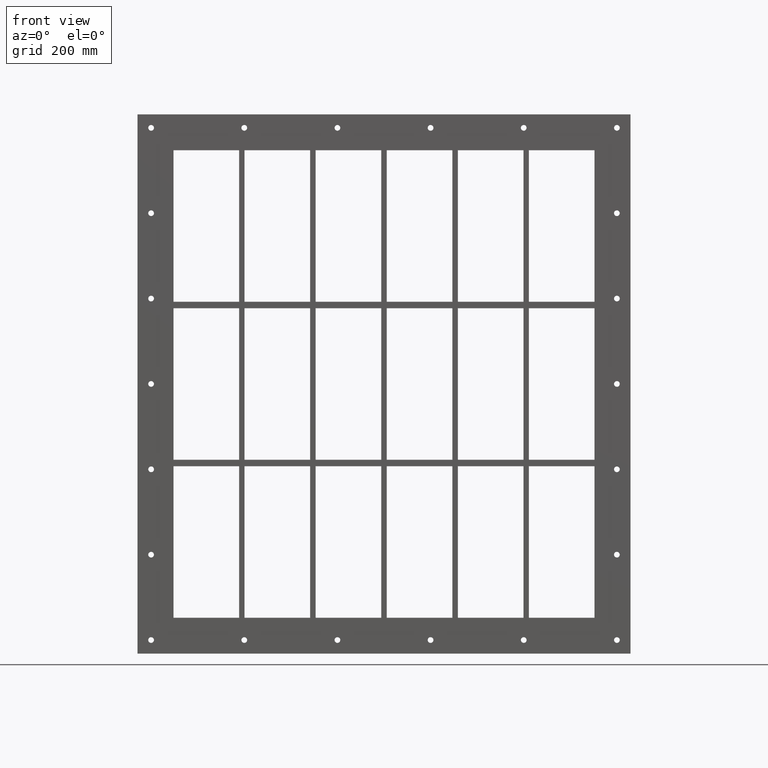
[diagram: clean part render]
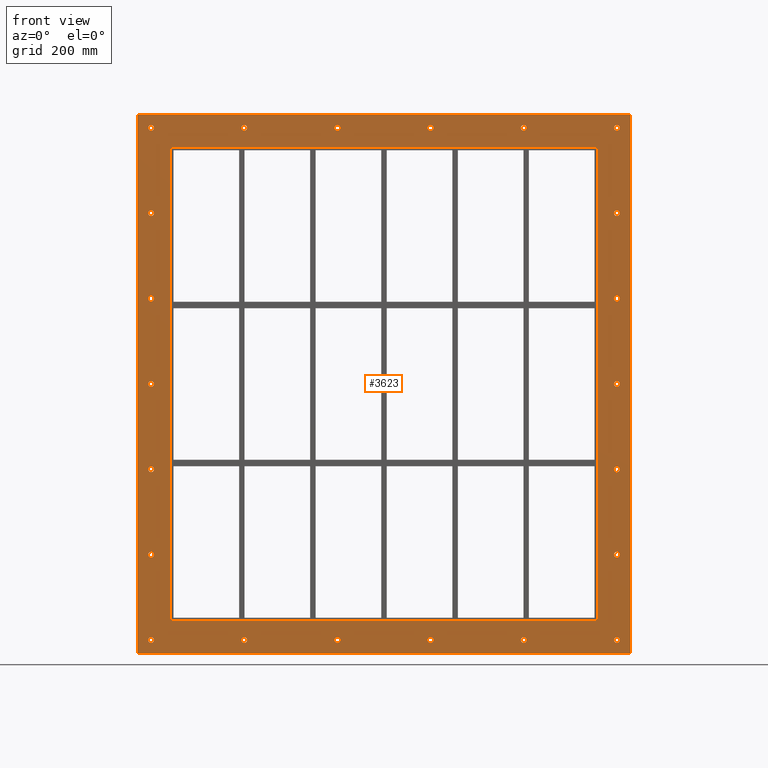
[diagram: same view with one face highlighted and labeled with its STEP entity id]
A machine part, front view. The second image highlights one B-rep face of the part: STEP entity #3623.
In plain terms, the highlighted planar face has unit normal (0, 1, 0).
Its self-contained STEP definition (entity closure, byte-faithful):
#84=CARTESIAN_POINT('',(-422.25000000000011,0.0,-470.00000000000011));
#85=VERTEX_POINT('',#84);
#86=CARTESIAN_POINT('',(-427.50000000000006,0.0,-470.00000000000011));
#87=DIRECTION('',(0.0,1.0,0.0));
#88=DIRECTION('',(1.0,0.0,0.0));
#89=AXIS2_PLACEMENT_3D('',#86,#87,#88);
#90=CIRCLE('',#89,5.25);
#91=EDGE_CURVE('',#85,#85,#90,.T.);
#112=CARTESIAN_POINT('',(432.74999999999989,0.0,-313.30000000000013));
#113=VERTEX_POINT('',#112);
#114=CARTESIAN_POINT('',(427.49999999999994,0.0,-313.30000000000013));
#115=DIRECTION('',(0.0,1.0,0.0));
#116=DIRECTION('',(1.0,0.0,0.0));
#117=AXIS2_PLACEMENT_3D('',#114,#115,#116);
#118=CIRCLE('',#117,5.25);
#119=EDGE_CURVE('',#113,#113,#118,.T.);
#140=CARTESIAN_POINT('',(-422.25000000000011,0.0,-313.30000000000013));
#141=VERTEX_POINT('',#140);
#142=CARTESIAN_POINT('',(-427.50000000000006,0.0,-313.30000000000013));
#143=DIRECTION('',(0.0,1.0,0.0));
#144=DIRECTION('',(1.0,0.0,0.0));
#145=AXIS2_PLACEMENT_3D('',#142,#143,#144);
#146=CIRCLE('',#145,5.25);
#147=EDGE_CURVE('',#141,#141,#146,.T.);
#168=CARTESIAN_POINT('',(432.74999999999989,0.0,-156.60000000000016));
#169=VERTEX_POINT('',#168);
#170=CARTESIAN_POINT('',(427.49999999999994,0.0,-156.60000000000016));
#171=DIRECTION('',(0.0,1.0,0.0));
#172=DIRECTION('',(1.0,0.0,0.0));
#173=AXIS2_PLACEMENT_3D('',#170,#171,#172);
#174=CIRCLE('',#173,5.25);
#175=EDGE_CURVE('',#169,#169,#174,.T.);
#196=CARTESIAN_POINT('',(-422.25000000000011,0.0,-156.60000000000016));
#197=VERTEX_POINT('',#196);
#198=CARTESIAN_POINT('',(-427.50000000000006,0.0,-156.60000000000016));
#199=DIRECTION('',(0.0,1.0,0.0));
#200=DIRECTION('',(1.0,0.0,0.0));
#201=AXIS2_PLACEMENT_3D('',#198,#199,#200);
#202=CIRCLE('',#201,5.25);
#203=EDGE_CURVE('',#197,#197,#202,.T.);
#224=CARTESIAN_POINT('',(432.74999999999989,0.0,0.099999999999856));
#225=VERTEX_POINT('',#224);
#226=CARTESIAN_POINT('',(427.49999999999994,0.0,0.099999999999856));
#227=DIRECTION('',(0.0,1.0,0.0));
#228=DIRECTION('',(1.0,0.0,0.0));
#229=AXIS2_PLACEMENT_3D('',#226,#227,#228);
#230=CIRCLE('',#229,5.25);
#231=EDGE_CURVE('',#225,#225,#230,.T.);
#252=CARTESIAN_POINT('',(-422.25000000000011,0.0,0.099999999999856));
#253=VERTEX_POINT('',#252);
#254=CARTESIAN_POINT('',(-427.50000000000006,0.0,0.099999999999856));
#255=DIRECTION('',(0.0,1.0,0.0));
#256=DIRECTION('',(1.0,0.0,0.0));
#257=AXIS2_PLACEMENT_3D('',#254,#255,#256);
#258=CIRCLE('',#257,5.25);
#259=EDGE_CURVE('',#253,#253,#258,.T.);
#280=CARTESIAN_POINT('',(432.74999999999989,0.0,156.79999999999981));
#281=VERTEX_POINT('',#280);
#282=CARTESIAN_POINT('',(427.49999999999994,0.0,156.79999999999981));
#283=DIRECTION('',(0.0,1.0,0.0));
#284=DIRECTION('',(1.0,0.0,0.0));
#285=AXIS2_PLACEMENT_3D('',#282,#283,#284);
#286=CIRCLE('',#285,5.25);
#287=EDGE_CURVE('',#281,#281,#286,.T.);
#308=CARTESIAN_POINT('',(-422.25000000000011,0.0,156.79999999999981));
#309=VERTEX_POINT('',#308);
#310=CARTESIAN_POINT('',(-427.50000000000006,0.0,156.79999999999981));
#311=DIRECTION('',(0.0,1.0,0.0));
#312=DIRECTION('',(1.0,0.0,0.0));
#313=AXIS2_PLACEMENT_3D('',#310,#311,#312);
#314=CIRCLE('',#313,5.25);
#315=EDGE_CURVE('',#309,#309,#314,.T.);
#336=CARTESIAN_POINT('',(432.74999999999989,0.0,313.49999999999977));
#337=VERTEX_POINT('',#336);
#338=CARTESIAN_POINT('',(427.49999999999994,0.0,313.49999999999977));
#339=DIRECTION('',(0.0,1.0,0.0));
#340=DIRECTION('',(1.0,0.0,0.0));
#341=AXIS2_PLACEMENT_3D('',#338,#339,#340);
#342=CIRCLE('',#341,5.25);
#343=EDGE_CURVE('',#337,#337,#342,.T.);
#364=CARTESIAN_POINT('',(-422.25000000000011,0.0,313.49999999999977));
#365=VERTEX_POINT('',#364);
#366=CARTESIAN_POINT('',(-427.50000000000006,0.0,313.49999999999977));
#367=DIRECTION('',(0.0,1.0,0.0));
#368=DIRECTION('',(1.0,0.0,0.0));
#369=AXIS2_PLACEMENT_3D('',#366,#367,#368);
#370=CIRCLE('',#369,5.25);
#371=EDGE_CURVE('',#365,#365,#370,.T.);
#392=CARTESIAN_POINT('',(-251.25000000000014,0.0,470.19999999999982));
#393=VERTEX_POINT('',#392);
#394=CARTESIAN_POINT('',(-256.50000000000011,0.0,470.19999999999982));
#395=DIRECTION('',(0.0,1.0,0.0));
#396=DIRECTION('',(1.0,0.0,0.0));
#397=AXIS2_PLACEMENT_3D('',#394,#395,#396);
#398=CIRCLE('',#397,5.25);
#399=EDGE_CURVE('',#393,#393,#398,.T.);
#420=CARTESIAN_POINT('',(-251.25000000000023,0.0,-470.00000000000011));
#421=VERTEX_POINT('',#420);
#422=CARTESIAN_POINT('',(-256.50000000000023,0.0,-470.00000000000011));
#423=DIRECTION('',(0.0,1.0,0.0));
#424=DIRECTION('',(1.0,0.0,0.0));
#425=AXIS2_PLACEMENT_3D('',#422,#423,#424);
#426=CIRCLE('',#425,5.25);
#427=EDGE_CURVE('',#421,#421,#426,.T.);
#448=CARTESIAN_POINT('',(-80.250000000000128,0.0,470.19999999999982));
#449=VERTEX_POINT('',#448);
#450=CARTESIAN_POINT('',(-85.500000000000114,0.0,470.19999999999982));
#451=DIRECTION('',(0.0,1.0,0.0));
#452=DIRECTION('',(1.0,0.0,0.0));
#453=AXIS2_PLACEMENT_3D('',#450,#451,#452);
#454=CIRCLE('',#453,5.25);
#455=EDGE_CURVE('',#449,#449,#454,.T.);
#476=CARTESIAN_POINT('',(-80.250000000000199,0.0,-470.00000000000011));
#477=VERTEX_POINT('',#476);
#478=CARTESIAN_POINT('',(-85.500000000000185,0.0,-470.00000000000011));
#479=DIRECTION('',(0.0,1.0,0.0));
#480=DIRECTION('',(1.0,0.0,0.0));
#481=AXIS2_PLACEMENT_3D('',#478,#479,#480);
#482=CIRCLE('',#481,5.25);
#483=EDGE_CURVE('',#477,#477,#482,.T.);
#504=CARTESIAN_POINT('',(90.749999999999886,0.0,470.19999999999982));
#505=VERTEX_POINT('',#504);
#506=CARTESIAN_POINT('',(85.499999999999901,0.0,470.19999999999982));
#507=DIRECTION('',(0.0,1.0,0.0));
#508=DIRECTION('',(1.0,0.0,0.0));
#509=AXIS2_PLACEMENT_3D('',#506,#507,#508);
#510=CIRCLE('',#509,5.25);
#511=EDGE_CURVE('',#505,#505,#510,.T.);
#532=CARTESIAN_POINT('',(90.749999999999815,0.0,-470.00000000000011));
#533=VERTEX_POINT('',#532);
#534=CARTESIAN_POINT('',(85.499999999999829,0.0,-470.00000000000011));
#535=DIRECTION('',(0.0,1.0,0.0));
#536=DIRECTION('',(1.0,0.0,0.0));
#537=AXIS2_PLACEMENT_3D('',#534,#535,#536);
#538=CIRCLE('',#537,5.25);
#539=EDGE_CURVE('',#533,#533,#538,.T.);
#560=CARTESIAN_POINT('',(261.74999999999989,0.0,470.19999999999982));
#561=VERTEX_POINT('',#560);
#562=CARTESIAN_POINT('',(256.49999999999989,0.0,470.19999999999982));
#563=DIRECTION('',(0.0,1.0,0.0));
#564=DIRECTION('',(1.0,0.0,0.0));
#565=AXIS2_PLACEMENT_3D('',#562,#563,#564);
#566=CIRCLE('',#565,5.25);
#567=EDGE_CURVE('',#561,#561,#566,.T.);
#588=CARTESIAN_POINT('',(261.74999999999983,0.0,-470.00000000000011));
#589=VERTEX_POINT('',#588);
#590=CARTESIAN_POINT('',(256.49999999999983,0.0,-470.00000000000011));
#591=DIRECTION('',(0.0,1.0,0.0));
#592=DIRECTION('',(1.0,0.0,0.0));
#593=AXIS2_PLACEMENT_3D('',#590,#591,#592);
#594=CIRCLE('',#593,5.25);
#595=EDGE_CURVE('',#589,#589,#594,.T.);
#616=CARTESIAN_POINT('',(432.74999999999983,0.0,-470.00000000000011));
#617=VERTEX_POINT('',#616);
#618=CARTESIAN_POINT('',(427.49999999999989,0.0,-470.00000000000011));
#619=DIRECTION('',(0.0,1.0,0.0));
#620=DIRECTION('',(1.0,0.0,0.0));
#621=AXIS2_PLACEMENT_3D('',#618,#619,#620);
#622=CIRCLE('',#621,5.25);
#623=EDGE_CURVE('',#617,#617,#622,.T.);
#644=CARTESIAN_POINT('',(-422.25000000000011,0.0,470.19999999999982));
#645=VERTEX_POINT('',#644);
#646=CARTESIAN_POINT('',(-427.50000000000006,0.0,470.19999999999982));
#647=DIRECTION('',(0.0,1.0,0.0));
#648=DIRECTION('',(1.0,0.0,0.0));
#649=AXIS2_PLACEMENT_3D('',#646,#647,#648);
#650=CIRCLE('',#649,5.25);
#651=EDGE_CURVE('',#645,#645,#650,.T.);
#672=CARTESIAN_POINT('',(432.74999999999989,0.0,470.19999999999982));
#673=VERTEX_POINT('',#672);
#674=CARTESIAN_POINT('',(427.49999999999994,0.0,470.19999999999982));
#675=DIRECTION('',(0.0,1.0,0.0));
#676=DIRECTION('',(1.0,0.0,0.0));
#677=AXIS2_PLACEMENT_3D('',#674,#675,#676);
#678=CIRCLE('',#677,5.25);
#679=EDGE_CURVE('',#673,#673,#678,.T.);
#3448=CARTESIAN_POINT('',(0.0,0.0,-5.399375E-014));
#3449=DIRECTION('',(0.0,1.0,0.0));
#3450=DIRECTION('',(0.0,0.0,1.0));
#3451=AXIS2_PLACEMENT_3D('',#3448,#3449,#3450);
#3452=PLANE('',#3451);
#3453=CARTESIAN_POINT('',(-452.50000000000006,0.0,495.00000000000006));
#3454=VERTEX_POINT('',#3453);
#3455=CARTESIAN_POINT('',(452.50000000000006,0.0,495.00000000000006));
#3456=VERTEX_POINT('',#3455);
#3457=CARTESIAN_POINT('',(-452.50000000000006,0.0,495.00000000000006));
#3458=DIRECTION('',(1.0,0.0,0.0));
#3459=VECTOR('',#3458,905.00000000000011);
#3460=LINE('',#3457,#3459);
#3461=EDGE_CURVE('',#3454,#3456,#3460,.T.);
#3462=ORIENTED_EDGE('',*,*,#3461,.F.);
#3463=CARTESIAN_POINT('',(-452.50000000000006,0.0,-495.00000000000011));
#3464=VERTEX_POINT('',#3463);
#3465=CARTESIAN_POINT('',(-452.50000000000006,0.0,-495.00000000000011));
#3466=DIRECTION('',(0.0,0.0,1.0));
#3467=VECTOR('',#3466,990.00000000000023);
#3468=LINE('',#3465,#3467);
#3469=EDGE_CURVE('',#3464,#3454,#3468,.T.);
#3470=ORIENTED_EDGE('',*,*,#3469,.F.);
#3471=CARTESIAN_POINT('',(452.50000000000006,0.0,-495.00000000000011));
#3472=VERTEX_POINT('',#3471);
#3473=CARTESIAN_POINT('',(452.50000000000006,0.0,-495.00000000000011));
#3474=DIRECTION('',(-1.0,0.0,0.0));
#3475=VECTOR('',#3474,905.00000000000011);
#3476=LINE('',#3473,#3475);
#3477=EDGE_CURVE('',#3472,#3464,#3476,.T.);
#3478=ORIENTED_EDGE('',*,*,#3477,.F.);
#3479=CARTESIAN_POINT('',(452.50000000000006,0.0,495.00000000000006));
#3480=DIRECTION('',(0.0,0.0,-1.0));
#3481=VECTOR('',#3480,990.00000000000023);
#3482=LINE('',#3479,#3481);
#3483=EDGE_CURVE('',#3456,#3472,#3482,.T.);
#3484=ORIENTED_EDGE('',*,*,#3483,.F.);
#3485=EDGE_LOOP('',(#3462,#3470,#3478,#3484));
#3486=FACE_OUTER_BOUND('',#3485,.T.);
#3487=ORIENTED_EDGE('',*,*,#91,.T.);
#3488=EDGE_LOOP('',(#3487));
#3489=FACE_BOUND('',#3488,.T.);
#3490=ORIENTED_EDGE('',*,*,#119,.T.);
#3491=EDGE_LOOP('',(#3490));
#3492=FACE_BOUND('',#3491,.T.);
#3493=ORIENTED_EDGE('',*,*,#147,.T.);
#3494=EDGE_LOOP('',(#3493));
#3495=FACE_BOUND('',#3494,.T.);
#3496=ORIENTED_EDGE('',*,*,#175,.T.);
#3497=EDGE_LOOP('',(#3496));
#3498=FACE_BOUND('',#3497,.T.);
#3499=ORIENTED_EDGE('',*,*,#203,.T.);
#3500=EDGE_LOOP('',(#3499));
#3501=FACE_BOUND('',#3500,.T.);
#3502=ORIENTED_EDGE('',*,*,#231,.T.);
#3503=EDGE_LOOP('',(#3502));
#3504=FACE_BOUND('',#3503,.T.);
#3505=ORIENTED_EDGE('',*,*,#259,.T.);
#3506=EDGE_LOOP('',(#3505));
#3507=FACE_BOUND('',#3506,.T.);
#3508=ORIENTED_EDGE('',*,*,#287,.T.);
#3509=EDGE_LOOP('',(#3508));
#3510=FACE_BOUND('',#3509,.T.);
#3511=ORIENTED_EDGE('',*,*,#315,.T.);
#3512=EDGE_LOOP('',(#3511));
#3513=FACE_BOUND('',#3512,.T.);
#3514=ORIENTED_EDGE('',*,*,#343,.T.);
#3515=EDGE_LOOP('',(#3514));
#3516=FACE_BOUND('',#3515,.T.);
#3517=ORIENTED_EDGE('',*,*,#371,.T.);
#3518=EDGE_LOOP('',(#3517));
#3519=FACE_BOUND('',#3518,.T.);
#3520=ORIENTED_EDGE('',*,*,#399,.T.);
#3521=EDGE_LOOP('',(#3520));
#3522=FACE_BOUND('',#3521,.T.);
#3523=ORIENTED_EDGE('',*,*,#427,.T.);
#3524=EDGE_LOOP('',(#3523));
#3525=FACE_BOUND('',#3524,.T.);
#3526=ORIENTED_EDGE('',*,*,#455,.T.);
#3527=EDGE_LOOP('',(#3526));
#3528=FACE_BOUND('',#3527,.T.);
#3529=ORIENTED_EDGE('',*,*,#483,.T.);
#3530=EDGE_LOOP('',(#3529));
#3531=FACE_BOUND('',#3530,.T.);
#3532=ORIENTED_EDGE('',*,*,#511,.T.);
#3533=EDGE_LOOP('',(#3532));
#3534=FACE_BOUND('',#3533,.T.);
#3535=ORIENTED_EDGE('',*,*,#539,.T.);
#3536=EDGE_LOOP('',(#3535));
#3537=FACE_BOUND('',#3536,.T.);
#3538=ORIENTED_EDGE('',*,*,#567,.T.);
#3539=EDGE_LOOP('',(#3538));
#3540=FACE_BOUND('',#3539,.T.);
#3541=ORIENTED_EDGE('',*,*,#595,.T.);
#3542=EDGE_LOOP('',(#3541));
#3543=FACE_BOUND('',#3542,.T.);
#3544=ORIENTED_EDGE('',*,*,#623,.T.);
#3545=EDGE_LOOP('',(#3544));
#3546=FACE_BOUND('',#3545,.T.);
#3547=ORIENTED_EDGE('',*,*,#651,.T.);
#3548=EDGE_LOOP('',(#3547));
#3549=FACE_BOUND('',#3548,.T.);
#3550=ORIENTED_EDGE('',*,*,#679,.T.);
#3551=EDGE_LOOP('',(#3550));
#3552=FACE_BOUND('',#3551,.T.);
#3553=CARTESIAN_POINT('',(-392.5,0.0,-429.00000000000006));
#3554=VERTEX_POINT('',#3553);
#3555=CARTESIAN_POINT('',(-386.49999999999989,0.0,-435.00000000000006));
#3556=VERTEX_POINT('',#3555);
#3557=CARTESIAN_POINT('',(-386.49999999999989,0.0,-429.00000000000006));
#3558=DIRECTION('',(0.0,-1.0,0.0));
#3559=DIRECTION('',(-0.707106781186556,0.0,-0.707106781186539));
#3560=AXIS2_PLACEMENT_3D('',#3557,#3558,#3559);
#3561=CIRCLE('',#3560,6.000000000000001);
#3562=EDGE_CURVE('',#3554,#3556,#3561,.T.);
#3563=ORIENTED_EDGE('',*,*,#3562,.F.);
#3564=CARTESIAN_POINT('',(-392.5,0.0,429.00000000000006));
#3565=VERTEX_POINT('',#3564);
#3566=CARTESIAN_POINT('',(-392.5,0.0,428.99999999999994));
#3567=DIRECTION('',(0.0,0.0,-1.0));
#3568=VECTOR('',#3567,858.0);
#3569=LINE('',#3566,#3568);
#3570=EDGE_CURVE('',#3565,#3554,#3569,.T.);
#3571=ORIENTED_EDGE('',*,*,#3570,.F.);
#3572=CARTESIAN_POINT('',(-386.50000000000006,0.0,435.00000000000006));
#3573=VERTEX_POINT('',#3572);
#3574=CARTESIAN_POINT('',(-386.50000000000006,0.0,429.00000000000006));
#3575=DIRECTION('',(0.0,-1.0,0.0));
#3576=DIRECTION('',(-0.707106781186548,0.0,0.707106781186548));
#3577=AXIS2_PLACEMENT_3D('',#3574,#3575,#3576);
#3578=CIRCLE('',#3577,6.000000000000002);
#3579=EDGE_CURVE('',#3573,#3565,#3578,.T.);
#3580=ORIENTED_EDGE('',*,*,#3579,.F.);
#3581=CARTESIAN_POINT('',(386.50000000000006,0.0,435.00000000000006));
#3582=VERTEX_POINT('',#3581);
#3583=CARTESIAN_POINT('',(386.5,0.0,435.00000000000006));
#3584=DIRECTION('',(-1.0,0.0,0.0));
#3585=VECTOR('',#3584,773.0);
#3586=LINE('',#3583,#3585);
#3587=EDGE_CURVE('',#3582,#3573,#3586,.T.);
#3588=ORIENTED_EDGE('',*,*,#3587,.F.);
#3589=CARTESIAN_POINT('',(392.50000000000011,0.0,429.00000000000006));
#3590=VERTEX_POINT('',#3589);
#3591=CARTESIAN_POINT('',(386.50000000000006,0.0,429.00000000000006));
#3592=DIRECTION('',(0.0,-1.0,0.0));
#3593=DIRECTION('',(0.707106781186556,0.0,0.707106781186539));
#3594=AXIS2_PLACEMENT_3D('',#3591,#3592,#3593);
#3595=CIRCLE('',#3594,6.000000000000001);
#3596=EDGE_CURVE('',#3590,#3582,#3595,.T.);
#3597=ORIENTED_EDGE('',*,*,#3596,.F.);
#3598=CARTESIAN_POINT('',(392.50000000000011,0.0,-429.00000000000006));
#3599=VERTEX_POINT('',#3598);
#3600=CARTESIAN_POINT('',(392.50000000000011,0.0,-429.0));
#3601=DIRECTION('',(0.0,0.0,1.0));
#3602=VECTOR('',#3601,858.0);
#3603=LINE('',#3600,#3602);
#3604=EDGE_CURVE('',#3599,#3590,#3603,.T.);
#3605=ORIENTED_EDGE('',*,*,#3604,.F.);
#3606=CARTESIAN_POINT('',(386.50000000000023,0.0,-435.00000000000006));
#3607=VERTEX_POINT('',#3606);
#3608=CARTESIAN_POINT('',(386.50000000000023,0.0,-429.00000000000006));
#3609=DIRECTION('',(0.0,-1.0,0.0));
#3610=DIRECTION('',(0.707106781186548,0.0,-0.707106781186548));
#3611=AXIS2_PLACEMENT_3D('',#3608,#3609,#3610);
#3612=CIRCLE('',#3611,6.000000000000002);
#3613=EDGE_CURVE('',#3607,#3599,#3612,.T.);
#3614=ORIENTED_EDGE('',*,*,#3613,.F.);
#3615=CARTESIAN_POINT('',(-386.49999999999994,0.0,-435.00000000000006));
#3616=DIRECTION('',(1.0,0.0,0.0));
#3617=VECTOR('',#3616,773.00000000000011);
#3618=LINE('',#3615,#3617);
#3619=EDGE_CURVE('',#3556,#3607,#3618,.T.);
#3620=ORIENTED_EDGE('',*,*,#3619,.F.);
#3621=EDGE_LOOP('',(#3563,#3571,#3580,#3588,#3597,#3605,#3614,#3620));
#3622=FACE_BOUND('',#3621,.T.);
#3623=ADVANCED_FACE('',(#3486,#3489,#3492,#3495,#3498,#3501,#3504,#3507,#3510,#3513,#3516,#3519,#3522,#3525,#3528,#3531,#3534,#3537,#3540,#3543,#3546,#3549,#3552,#3622),#3452,.F.);